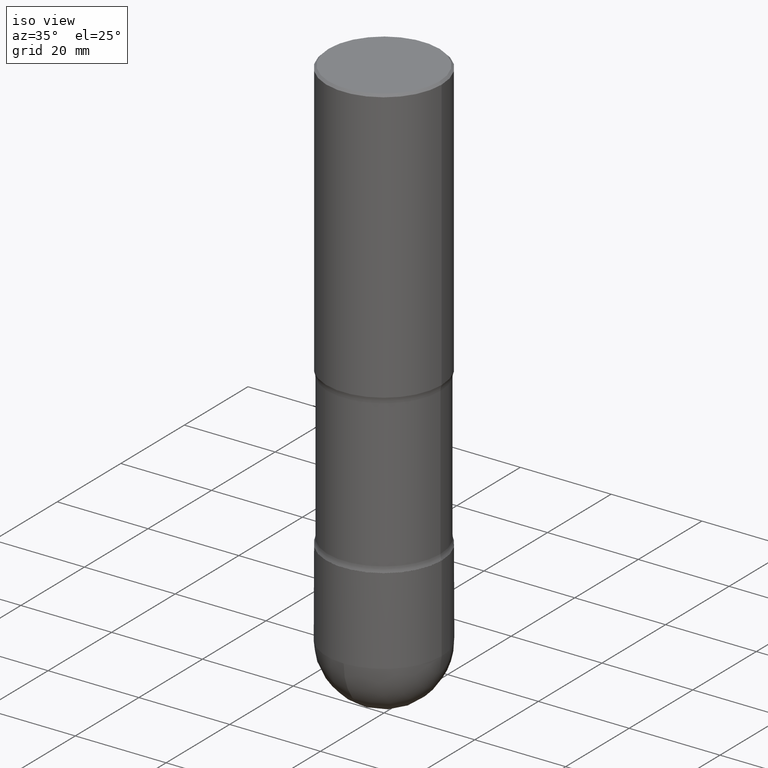
[diagram: clean part render]
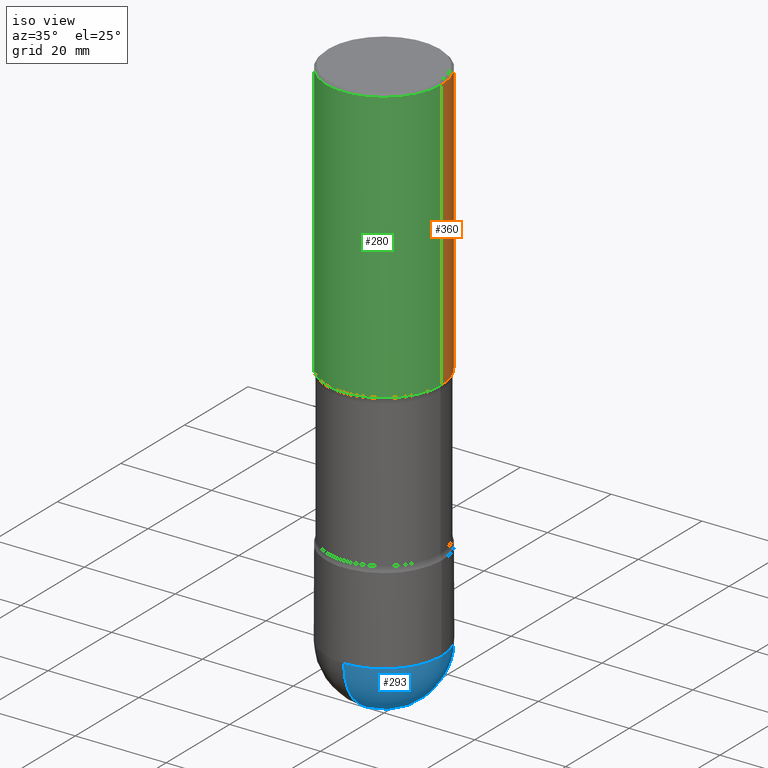
[diagram: same view with three faces highlighted in distinct colors, each labeled with its STEP entity id]
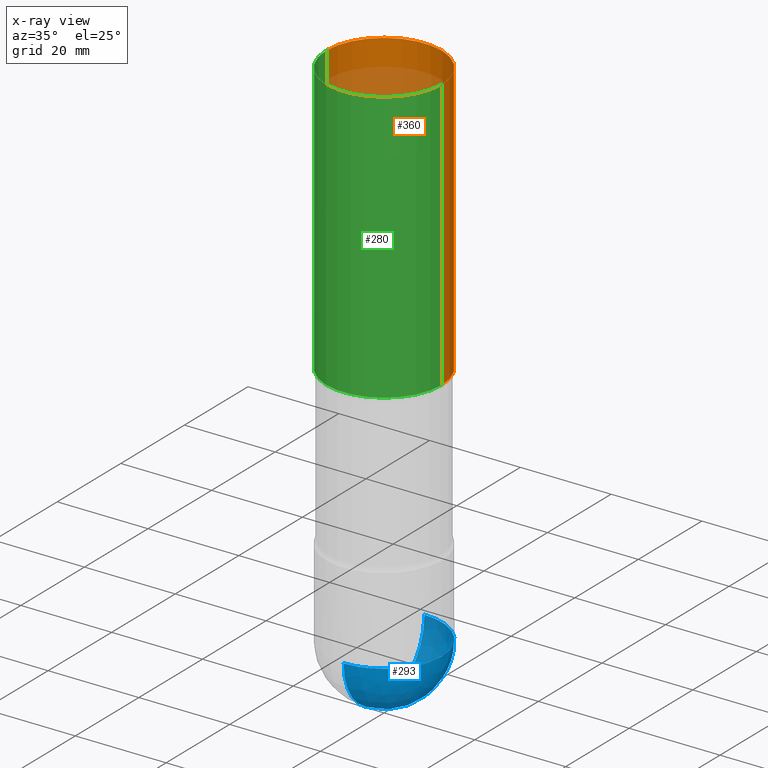
[diagram: x-ray of the same camera — body ghosted, the three highlighted faces saturated]
A machine part, iso view with three faces highlighted in distinct colors.
The next image is the same camera in x-ray (body ghosted, the three faces saturated) — at least one of them is partly hidden behind the body in this view.
Their STEP definitions:

[orange] entity #360 — the highlighted cylindrical surface (partial cylindrical patch) has radius 12.7 mm, axis along (0, -0, -1).
#1 = CARTESIAN_POINT ( 'NONE',  ( -0.4999999999999998335, -9.601573681818665636E-15, -3.750000000000000000 ) ) ;
#13 = LINE ( 'NONE', #1, #461 ) ;
#32 = CYLINDRICAL_SURFACE ( 'NONE', #503, 0.4999999999999998335 ) ;
#42 = ORIENTED_EDGE ( 'NONE', *, *, #492, .F. ) ;
#43 = VECTOR ( 'NONE', #560, 39.37007874015748143 ) ;
#56 = CARTESIAN_POINT ( 'NONE',  ( -0.4999999999999999445, -4.800786840909344651E-15, -2.375000000000002220 ) ) ;
#71 = EDGE_CURVE ( 'NONE', #472, #209, #304, .T. ) ;
#75 = ORIENTED_EDGE ( 'NONE', *, *, #274, .F. ) ;
#89 = CARTESIAN_POINT ( 'NONE',  ( 0.4999999999999998335, -1.652330401954756320E-14, -3.750000000000000000 ) ) ;
#109 = DIRECTION ( 'NONE',  ( 2.445468806185136597E-29, -3.491481338843145583E-15, -1.000000000000000000 ) ) ;
#117 = EDGE_LOOP ( 'NONE', ( #519, #386, #75, #42 ) ) ;
#125 = DIRECTION ( 'NONE',  ( 2.445468806185136877E-29, -3.491481338843145188E-15, -1.000000000000000000 ) ) ;
#136 = FACE_OUTER_BOUND ( 'NONE', #117, .T. ) ;
#209 = VERTEX_POINT ( 'NONE', #505 ) ;
#217 = DIRECTION ( 'NONE',  ( 2.445468806185136597E-29, -3.491481338843145583E-15, -1.000000000000000000 ) ) ;
#244 = VERTEX_POINT ( 'NONE', #510 ) ;
#251 = CARTESIAN_POINT ( 'NONE',  ( 5.807988414689705023E-29, -8.292268179752478006E-15, -2.375000000000002220 ) ) ;
#254 = AXIS2_PLACEMENT_3D ( 'NONE', #251, #109, #372 ) ;
#273 = DIRECTION ( 'NONE',  ( -1.000000000000000000, 6.982962677686266711E-15, 0.000000000000000000 ) ) ;
#274 = EDGE_CURVE ( 'NONE', #389, #209, #484, .T. ) ;
#281 = CARTESIAN_POINT ( 'NONE',  ( 0.4999999999999997224, -3.500078625662628291E-15, -0.02000000000000033348 ) ) ;
#298 = CARTESIAN_POINT ( 'NONE',  ( 9.170508023194262238E-29, -1.309305502066179741E-14, -3.750000000000000000 ) ) ;
#304 = LINE ( 'NONE', #89, #43 ) ;
#319 = DIRECTION ( 'NONE',  ( 2.445468806185136597E-29, -3.491481338843145583E-15, -1.000000000000000000 ) ) ;
#360 = ADVANCED_FACE ( 'NONE', ( #136 ), #32, .T. ) ;
#367 = CARTESIAN_POINT ( 'NONE',  ( 4.890937612370354609E-31, -6.982962677686407473E-17, -0.02000000000000033348 ) ) ;
#372 = DIRECTION ( 'NONE',  ( -1.000000000000000000, 6.982962677686267499E-15, 0.000000000000000000 ) ) ;
#386 = ORIENTED_EDGE ( 'NONE', *, *, #71, .T. ) ;
#389 = VERTEX_POINT ( 'NONE', #56 ) ;
#394 = CIRCLE ( 'NONE', #406, 0.4999999999999997224 ) ;
#398 = DIRECTION ( 'NONE',  ( -1.000000000000000000, 6.982962677686265133E-15, 0.000000000000000000 ) ) ;
#406 = AXIS2_PLACEMENT_3D ( 'NONE', #367, #319, #273 ) ;
#461 = VECTOR ( 'NONE', #125, 39.37007874015748143 ) ;
#472 = VERTEX_POINT ( 'NONE', #281 ) ;
#480 = EDGE_CURVE ( 'NONE', #244, #472, #394, .T. ) ;
#484 = CIRCLE ( 'NONE', #254, 0.4999999999999999445 ) ;
#492 = EDGE_CURVE ( 'NONE', #244, #389, #13, .T. ) ;
#503 = AXIS2_PLACEMENT_3D ( 'NONE', #298, #217, #398 ) ;
#505 = CARTESIAN_POINT ( 'NONE',  ( 0.5000000000000000000, -7.611297902150438011E-15, -2.375000000000002220 ) ) ;
#510 = CARTESIAN_POINT ( 'NONE',  ( -0.4999999999999997224, 3.421651712066267296E-15, -0.02000000000000033348 ) ) ;
#519 = ORIENTED_EDGE ( 'NONE', *, *, #480, .T. ) ;
#560 = DIRECTION ( 'NONE',  ( 2.445468806185136877E-29, -3.491481338843145188E-15, -1.000000000000000000 ) ) ;

[blue] entity #293 — the highlighted spherical surface has radius 12.7 mm.
#23 = VERTEX_POINT ( 'NONE', #170 ) ;
#33 = DIRECTION ( 'NONE',  ( -6.982962677686265922E-15, -1.000000000000000000, 0.000000000000000000 ) ) ;
#59 = EDGE_CURVE ( 'NONE', #393, #250, #382, .T. ) ;
#112 = VERTEX_POINT ( 'NONE', #373 ) ;
#143 = EDGE_CURVE ( 'NONE', #112, #23, #356, .T. ) ;
#145 = CARTESIAN_POINT ( 'NONE',  ( 0.4999999999999993339, -1.789384186157110736E-14, -4.499999999999999112 ) ) ;
#157 = DIRECTION ( 'NONE',  ( 1.000000000000000000, -6.982962677686264344E-15, 0.000000000000000000 ) ) ;
#170 = CARTESIAN_POINT ( 'NONE',  ( -3.491481338843020943E-15, -0.5000000000000154321, -4.499999999999998224 ) ) ;
#173 = AXIS2_PLACEMENT_3D ( 'NONE', #549, #435, #375 ) ;
#178 = ORIENTED_EDGE ( 'NONE', *, *, #59, .F. ) ;
#224 = EDGE_CURVE ( 'NONE', #23, #393, #428, .T. ) ;
#241 = CARTESIAN_POINT ( 'NONE',  ( 1.087633468445620528E-28, -1.589536304466625962E-14, -4.500000000000000000 ) ) ;
#245 = CARTESIAN_POINT ( 'NONE',  ( 3.552713678800606637E-15, 0.4999999999999837352, -4.500000000000000888 ) ) ;
#250 = VERTEX_POINT ( 'NONE', #245 ) ;
#261 = EDGE_LOOP ( 'NONE', ( #476, #305, #178, #546 ) ) ;
#270 = CARTESIAN_POINT ( 'NONE',  ( 1.087633468445620528E-28, -1.589536304466625962E-14, -4.500000000000000000 ) ) ;
#276 = AXIS2_PLACEMENT_3D ( 'NONE', #295, #421, #157 ) ;
#293 = ADVANCED_FACE ( 'NONE', ( #359 ), #488, .T. ) ;
#295 = CARTESIAN_POINT ( 'NONE',  ( 1.100460962783311244E-28, -1.571166602479415374E-14, -4.499999999999999112 ) ) ;
#305 = ORIENTED_EDGE ( 'NONE', *, *, #566, .T. ) ;
#306 = CARTESIAN_POINT ( 'NONE',  ( 1.100460962783311244E-28, -1.571166602479415374E-14, -4.499999999999999112 ) ) ;
#327 = DIRECTION ( 'NONE',  ( -1.000000000000000000, 6.982962677686265922E-15, -4.883557194083112340E-29 ) ) ;
#356 = CIRCLE ( 'NONE', #399, 0.4999999999999998335 ) ;
#359 = FACE_OUTER_BOUND ( 'NONE', #261, .T. ) ;
#371 = AXIS2_PLACEMENT_3D ( 'NONE', #270, #517, #552 ) ;
#373 = CARTESIAN_POINT ( 'NONE',  ( 1.207768993031928718E-28, -1.767171988406651324E-14, -5.000000000000000000 ) ) ;
#375 = DIRECTION ( 'NONE',  ( 7.105427357601001070E-15, 1.000000000000000000, 0.000000000000000000 ) ) ;
#382 = CIRCLE ( 'NONE', #515, 0.4999999999999993339 ) ;
#393 = VERTEX_POINT ( 'NONE', #145 ) ;
#397 = DIRECTION ( 'NONE',  ( 1.000000000000000000, -6.982962677686264344E-15, 0.000000000000000000 ) ) ;
#399 = AXIS2_PLACEMENT_3D ( 'NONE', #241, #327, #33 ) ;
#421 = DIRECTION ( 'NONE',  ( -2.445468806185136597E-29, 3.491481338843145583E-15, 1.000000000000000000 ) ) ;
#428 = CIRCLE ( 'NONE', #276, 0.4999999999999993339 ) ;
#435 = DIRECTION ( 'NONE',  ( 1.000000000000000000, -7.105427357601001070E-15, 4.926315508542082329E-29 ) ) ;
#476 = ORIENTED_EDGE ( 'NONE', *, *, #143, .F. ) ;
#483 = DIRECTION ( 'NONE',  ( -2.445468806185136597E-29, 3.491481338843145583E-15, 1.000000000000000000 ) ) ;
#488 = SPHERICAL_SURFACE ( 'NONE', #371, 0.4999999999999998335 ) ;
#515 = AXIS2_PLACEMENT_3D ( 'NONE', #306, #483, #397 ) ;
#517 = DIRECTION ( 'NONE',  ( 1.000000000000000000, -6.982962677686265922E-15, 4.883557194083112901E-29 ) ) ;
#529 = CIRCLE ( 'NONE', #173, 0.4999999999999998335 ) ;
#546 = ORIENTED_EDGE ( 'NONE', *, *, #224, .F. ) ;
#549 = CARTESIAN_POINT ( 'NONE',  ( 1.087633468445620528E-28, -1.589536304466625962E-14, -4.500000000000000000 ) ) ;
#552 = DIRECTION ( 'NONE',  ( -6.982962677686265922E-15, -1.000000000000000000, 3.278217592397116651E-15 ) ) ;
#566 = EDGE_CURVE ( 'NONE', #112, #250, #529, .T. ) ;

[green] entity #280 — the highlighted cylindrical surface (partial cylindrical patch) has radius 12.7 mm, axis along (0, -0, -1).
#1 = CARTESIAN_POINT ( 'NONE',  ( -0.4999999999999998335, -9.601573681818665636E-15, -3.750000000000000000 ) ) ;
#13 = LINE ( 'NONE', #1, #461 ) ;
#26 = EDGE_CURVE ( 'NONE', #209, #389, #63, .T. ) ;
#35 = DIRECTION ( 'NONE',  ( 2.445468806185136597E-29, -3.491481338843145583E-15, -1.000000000000000000 ) ) ;
#43 = VECTOR ( 'NONE', #560, 39.37007874015748143 ) ;
#56 = CARTESIAN_POINT ( 'NONE',  ( -0.4999999999999999445, -4.800786840909344651E-15, -2.375000000000002220 ) ) ;
#63 = CIRCLE ( 'NONE', #212, 0.4999999999999999445 ) ;
#66 = DIRECTION ( 'NONE',  ( -1.000000000000000000, 6.982962677686266711E-15, 0.000000000000000000 ) ) ;
#71 = EDGE_CURVE ( 'NONE', #472, #209, #304, .T. ) ;
#83 = DIRECTION ( 'NONE',  ( 2.445468806185136597E-29, -3.491481338843145583E-15, -1.000000000000000000 ) ) ;
#89 = CARTESIAN_POINT ( 'NONE',  ( 0.4999999999999998335, -1.652330401954756320E-14, -3.750000000000000000 ) ) ;
#97 = FACE_OUTER_BOUND ( 'NONE', #240, .T. ) ;
#125 = DIRECTION ( 'NONE',  ( 2.445468806185136877E-29, -3.491481338843145188E-15, -1.000000000000000000 ) ) ;
#138 = CYLINDRICAL_SURFACE ( 'NONE', #300, 0.4999999999999998335 ) ;
#177 = DIRECTION ( 'NONE',  ( 2.445468806185136597E-29, -3.491481338843145583E-15, -1.000000000000000000 ) ) ;
#203 = ORIENTED_EDGE ( 'NONE', *, *, #525, .T. ) ;
#209 = VERTEX_POINT ( 'NONE', #505 ) ;
#212 = AXIS2_PLACEMENT_3D ( 'NONE', #350, #177, #308 ) ;
#240 = EDGE_LOOP ( 'NONE', ( #292, #203, #558, #553 ) ) ;
#244 = VERTEX_POINT ( 'NONE', #510 ) ;
#256 = CIRCLE ( 'NONE', #363, 0.4999999999999997224 ) ;
#280 = ADVANCED_FACE ( 'NONE', ( #97 ), #138, .T. ) ;
#281 = CARTESIAN_POINT ( 'NONE',  ( 0.4999999999999997224, -3.500078625662628291E-15, -0.02000000000000033348 ) ) ;
#292 = ORIENTED_EDGE ( 'NONE', *, *, #71, .F. ) ;
#300 = AXIS2_PLACEMENT_3D ( 'NONE', #565, #83, #513 ) ;
#304 = LINE ( 'NONE', #89, #43 ) ;
#308 = DIRECTION ( 'NONE',  ( -1.000000000000000000, 6.982962677686267499E-15, 0.000000000000000000 ) ) ;
#350 = CARTESIAN_POINT ( 'NONE',  ( 5.807988414689705023E-29, -8.292268179752478006E-15, -2.375000000000002220 ) ) ;
#363 = AXIS2_PLACEMENT_3D ( 'NONE', #459, #35, #66 ) ;
#389 = VERTEX_POINT ( 'NONE', #56 ) ;
#459 = CARTESIAN_POINT ( 'NONE',  ( 4.890937612370354609E-31, -6.982962677686407473E-17, -0.02000000000000033348 ) ) ;
#461 = VECTOR ( 'NONE', #125, 39.37007874015748143 ) ;
#472 = VERTEX_POINT ( 'NONE', #281 ) ;
#492 = EDGE_CURVE ( 'NONE', #244, #389, #13, .T. ) ;
#505 = CARTESIAN_POINT ( 'NONE',  ( 0.5000000000000000000, -7.611297902150438011E-15, -2.375000000000002220 ) ) ;
#510 = CARTESIAN_POINT ( 'NONE',  ( -0.4999999999999997224, 3.421651712066267296E-15, -0.02000000000000033348 ) ) ;
#513 = DIRECTION ( 'NONE',  ( -1.000000000000000000, 6.982962677686265133E-15, 0.000000000000000000 ) ) ;
#525 = EDGE_CURVE ( 'NONE', #472, #244, #256, .T. ) ;
#553 = ORIENTED_EDGE ( 'NONE', *, *, #26, .F. ) ;
#558 = ORIENTED_EDGE ( 'NONE', *, *, #492, .T. ) ;
#560 = DIRECTION ( 'NONE',  ( 2.445468806185136877E-29, -3.491481338843145188E-15, -1.000000000000000000 ) ) ;
#565 = CARTESIAN_POINT ( 'NONE',  ( 9.170508023194262238E-29, -1.309305502066179741E-14, -3.750000000000000000 ) ) ;